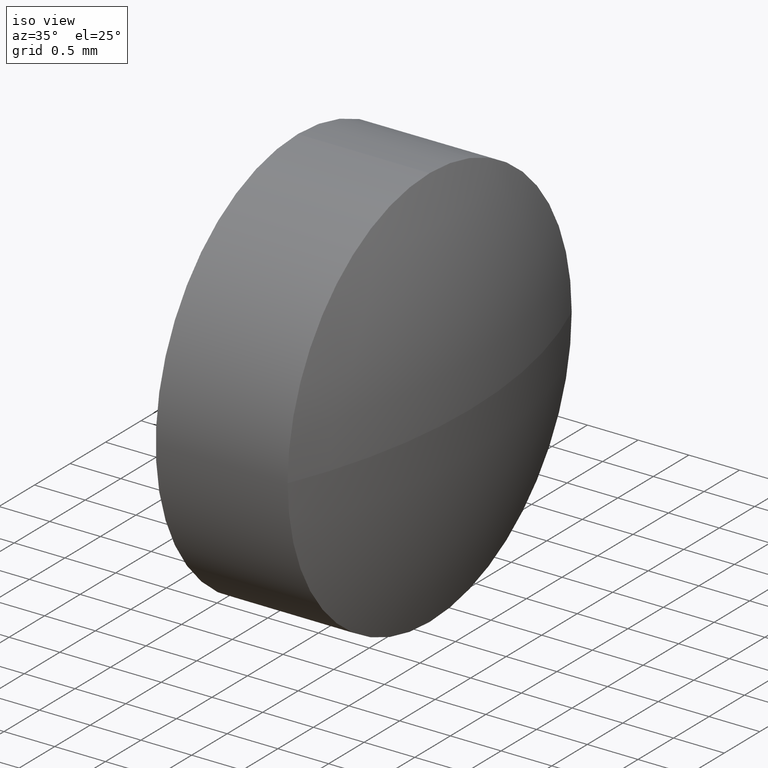
[diagram: clean part render]
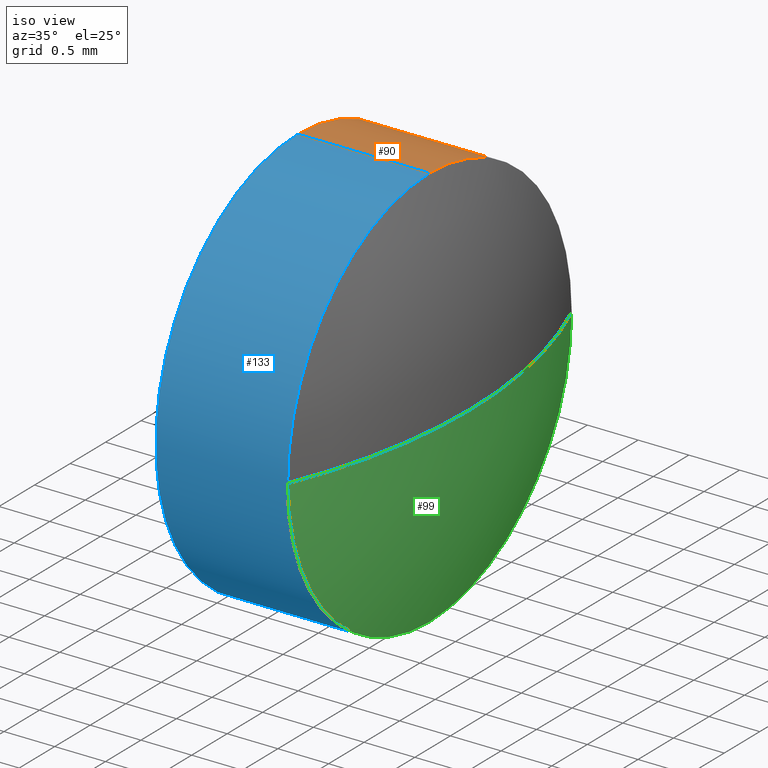
[diagram: same view with three faces highlighted in distinct colors, each labeled with its STEP entity id]
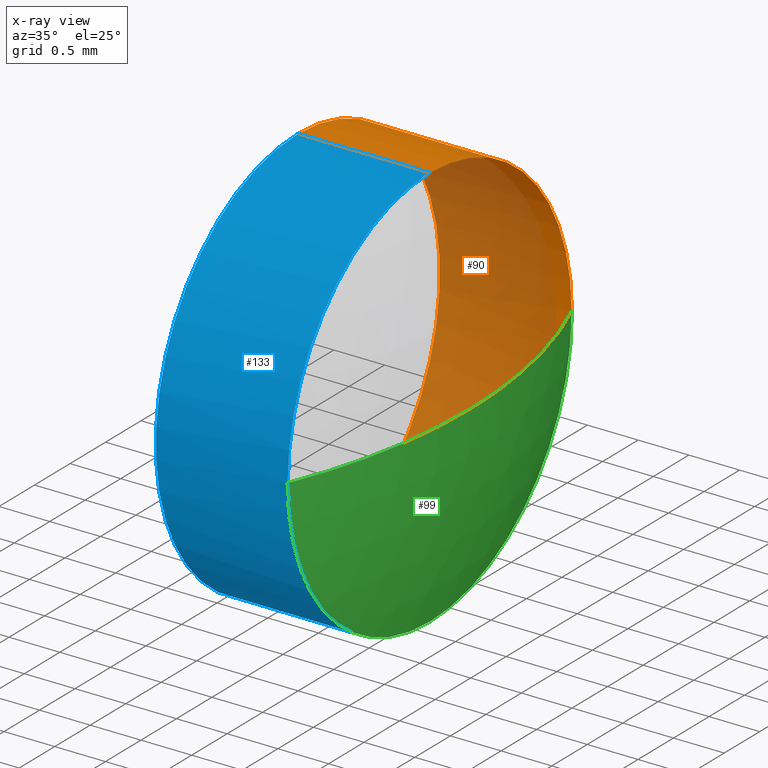
[diagram: x-ray of the same camera — body ghosted, the three highlighted faces saturated]
A machine part, iso view with three faces highlighted in distinct colors.
The next image is the same camera in x-ray (body ghosted, the three faces saturated) — at least one of them is partly hidden behind the body in this view.
Their STEP definitions:

[orange] entity #90 — the highlighted cylindrical surface (partial cylindrical patch) has radius 2 mm, axis along (-1, -0, -0).
#18 = DIRECTION ( 'NONE',  ( -1.000000000000000000, -0.0000000000000000000, -0.0000000000000000000 ) ) ;
#24 = DIRECTION ( 'NONE',  ( -1.000000000000000000, -0.0000000000000000000, -0.0000000000000000000 ) ) ;
#27 = AXIS2_PLACEMENT_3D ( 'NONE', #146, #33, #141 ) ;
#31 = CARTESIAN_POINT ( 'NONE',  ( 670.2757176332884200, 145.5310956935278200, -2.000000000000001800 ) ) ;
#32 = ORIENTED_EDGE ( 'NONE', *, *, #73, .T. ) ;
#33 = DIRECTION ( 'NONE',  ( -1.000000000000000000, -0.0000000000000000000, -0.0000000000000000000 ) ) ;
#35 = CARTESIAN_POINT ( 'NONE',  ( 671.7241212514443300, 145.5310956935278200, 2.000000000000001800 ) ) ;
#44 = AXIS2_PLACEMENT_3D ( 'NONE', #110, #24, #160 ) ;
#45 = CIRCLE ( 'NONE', #185, 2.000000000000001800 ) ;
#47 = CARTESIAN_POINT ( 'NONE',  ( 670.4241212514442600, 145.5310956935278200, -2.000000000000001800 ) ) ;
#55 = LINE ( 'NONE', #31, #56 ) ;
#56 = VECTOR ( 'NONE', #18, 1000.000000000000000 ) ;
#59 = VERTEX_POINT ( 'NONE', #179 ) ;
#61 = EDGE_CURVE ( 'NONE', #59, #76, #45, .T. ) ;
#71 = VERTEX_POINT ( 'NONE', #128 ) ;
#73 = EDGE_CURVE ( 'NONE', #108, #76, #55, .T. ) ;
#74 = CIRCLE ( 'NONE', #126, 2.000000000000001800 ) ;
#76 = VERTEX_POINT ( 'NONE', #47 ) ;
#77 = DIRECTION ( 'NONE',  ( -1.000000000000000000, -0.0000000000000000000, -0.0000000000000000000 ) ) ;
#85 = EDGE_CURVE ( 'NONE', #156, #59, #92, .T. ) ;
#89 = DIRECTION ( 'NONE',  ( -1.000000000000000000, -0.0000000000000000000, -0.0000000000000000000 ) ) ;
#90 = ADVANCED_FACE ( 'NONE', ( #124 ), #120, .T. ) ;
#91 = CARTESIAN_POINT ( 'NONE',  ( 670.2757176332884200, 145.5310956935278200, 2.000000000000001800 ) ) ;
#92 = LINE ( 'NONE', #91, #154 ) ;
#96 = CARTESIAN_POINT ( 'NONE',  ( 671.7241212514443300, 145.5310956935278200, 0.0000000000000000000 ) ) ;
#100 = ORIENTED_EDGE ( 'NONE', *, *, #61, .F. ) ;
#102 = ORIENTED_EDGE ( 'NONE', *, *, #85, .F. ) ;
#104 = EDGE_LOOP ( 'NONE', ( #138, #129, #32, #100, #102 ) ) ;
#108 = VERTEX_POINT ( 'NONE', #111 ) ;
#109 = EDGE_CURVE ( 'NONE', #156, #71, #186, .T. ) ;
#110 = CARTESIAN_POINT ( 'NONE',  ( 671.7241212514443300, 145.5310956935278200, 0.0000000000000000000 ) ) ;
#111 = CARTESIAN_POINT ( 'NONE',  ( 671.7241212514443300, 145.5310956935278200, -2.000000000000001800 ) ) ;
#120 = CYLINDRICAL_SURFACE ( 'NONE', #27, 2.000000000000001800 ) ;
#122 = DIRECTION ( 'NONE',  ( -1.000000000000000000, -0.0000000000000000000, -0.0000000000000000000 ) ) ;
#123 = DIRECTION ( 'NONE',  ( 0.0000000000000000000, 0.0000000000000000000, 1.000000000000000000 ) ) ;
#124 = FACE_OUTER_BOUND ( 'NONE', #104, .T. ) ;
#126 = AXIS2_PLACEMENT_3D ( 'NONE', #96, #122, #123 ) ;
#128 = CARTESIAN_POINT ( 'NONE',  ( 671.7241212514443300, 147.5310956935277900, 0.0000000000000000000 ) ) ;
#129 = ORIENTED_EDGE ( 'NONE', *, *, #168, .T. ) ;
#138 = ORIENTED_EDGE ( 'NONE', *, *, #109, .T. ) ;
#141 = DIRECTION ( 'NONE',  ( 0.0000000000000000000, 0.0000000000000000000, 1.000000000000000000 ) ) ;
#144 = DIRECTION ( 'NONE',  ( 0.0000000000000000000, 0.0000000000000000000, 1.000000000000000000 ) ) ;
#146 = CARTESIAN_POINT ( 'NONE',  ( 670.2757176332884200, 145.5310956935278200, 0.0000000000000000000 ) ) ;
#154 = VECTOR ( 'NONE', #77, 1000.000000000000000 ) ;
#156 = VERTEX_POINT ( 'NONE', #35 ) ;
#158 = CARTESIAN_POINT ( 'NONE',  ( 670.4241212514442600, 145.5310956935278200, 0.0000000000000000000 ) ) ;
#160 = DIRECTION ( 'NONE',  ( 0.0000000000000000000, 0.0000000000000000000, 1.000000000000000000 ) ) ;
#168 = EDGE_CURVE ( 'NONE', #71, #108, #74, .T. ) ;
#179 = CARTESIAN_POINT ( 'NONE',  ( 670.4241212514442600, 145.5310956935278200, 2.000000000000001800 ) ) ;
#185 = AXIS2_PLACEMENT_3D ( 'NONE', #158, #89, #144 ) ;
#186 = CIRCLE ( 'NONE', #44, 2.000000000000001800 ) ;

[blue] entity #133 — the highlighted cylindrical surface (partial cylindrical patch) has radius 2 mm, axis along (-1, -0, -0).
#1 = AXIS2_PLACEMENT_3D ( 'NONE', #6, #10, #181 ) ;
#6 = CARTESIAN_POINT ( 'NONE',  ( 671.7241212514443300, 145.5310956935278200, 0.0000000000000000000 ) ) ;
#10 = DIRECTION ( 'NONE',  ( -1.000000000000000000, -0.0000000000000000000, -0.0000000000000000000 ) ) ;
#11 = AXIS2_PLACEMENT_3D ( 'NONE', #130, #43, #118 ) ;
#12 = DIRECTION ( 'NONE',  ( -1.000000000000000000, -0.0000000000000000000, -0.0000000000000000000 ) ) ;
#18 = DIRECTION ( 'NONE',  ( -1.000000000000000000, -0.0000000000000000000, -0.0000000000000000000 ) ) ;
#21 = CARTESIAN_POINT ( 'NONE',  ( 671.7241212514443300, 143.5310956935279000, -2.449293598294682300E-016 ) ) ;
#22 = DIRECTION ( 'NONE',  ( -1.000000000000000000, -0.0000000000000000000, -0.0000000000000000000 ) ) ;
#28 = EDGE_LOOP ( 'NONE', ( #52, #170, #125, #172, #30 ) ) ;
#30 = ORIENTED_EDGE ( 'NONE', *, *, #57, .F. ) ;
#31 = CARTESIAN_POINT ( 'NONE',  ( 670.2757176332884200, 145.5310956935278200, -2.000000000000001800 ) ) ;
#35 = CARTESIAN_POINT ( 'NONE',  ( 671.7241212514443300, 145.5310956935278200, 2.000000000000001800 ) ) ;
#40 = CIRCLE ( 'NONE', #155, 2.000000000000001800 ) ;
#43 = DIRECTION ( 'NONE',  ( -1.000000000000000000, -0.0000000000000000000, -0.0000000000000000000 ) ) ;
#47 = CARTESIAN_POINT ( 'NONE',  ( 670.4241212514442600, 145.5310956935278200, -2.000000000000001800 ) ) ;
#52 = ORIENTED_EDGE ( 'NONE', *, *, #73, .F. ) ;
#55 = LINE ( 'NONE', #31, #56 ) ;
#56 = VECTOR ( 'NONE', #18, 1000.000000000000000 ) ;
#57 = EDGE_CURVE ( 'NONE', #76, #59, #97, .T. ) ;
#59 = VERTEX_POINT ( 'NONE', #179 ) ;
#64 = CIRCLE ( 'NONE', #1, 2.000000000000001800 ) ;
#73 = EDGE_CURVE ( 'NONE', #108, #76, #55, .T. ) ;
#76 = VERTEX_POINT ( 'NONE', #47 ) ;
#77 = DIRECTION ( 'NONE',  ( -1.000000000000000000, -0.0000000000000000000, -0.0000000000000000000 ) ) ;
#85 = EDGE_CURVE ( 'NONE', #156, #59, #92, .T. ) ;
#91 = CARTESIAN_POINT ( 'NONE',  ( 670.2757176332884200, 145.5310956935278200, 2.000000000000001800 ) ) ;
#92 = LINE ( 'NONE', #91, #154 ) ;
#93 = CARTESIAN_POINT ( 'NONE',  ( 671.7241212514443300, 145.5310956935278200, 0.0000000000000000000 ) ) ;
#95 = DIRECTION ( 'NONE',  ( 0.0000000000000000000, 0.0000000000000000000, 1.000000000000000000 ) ) ;
#97 = CIRCLE ( 'NONE', #11, 2.000000000000001800 ) ;
#108 = VERTEX_POINT ( 'NONE', #111 ) ;
#111 = CARTESIAN_POINT ( 'NONE',  ( 671.7241212514443300, 145.5310956935278200, -2.000000000000001800 ) ) ;
#118 = DIRECTION ( 'NONE',  ( 0.0000000000000000000, 0.0000000000000000000, 1.000000000000000000 ) ) ;
#125 = ORIENTED_EDGE ( 'NONE', *, *, #147, .T. ) ;
#130 = CARTESIAN_POINT ( 'NONE',  ( 670.4241212514442600, 145.5310956935278200, 0.0000000000000000000 ) ) ;
#133 = ADVANCED_FACE ( 'NONE', ( #148 ), #167, .T. ) ;
#145 = AXIS2_PLACEMENT_3D ( 'NONE', #152, #22, #182 ) ;
#147 = EDGE_CURVE ( 'NONE', #178, #156, #40, .T. ) ;
#148 = FACE_OUTER_BOUND ( 'NONE', #28, .T. ) ;
#152 = CARTESIAN_POINT ( 'NONE',  ( 670.2757176332884200, 145.5310956935278200, 0.0000000000000000000 ) ) ;
#154 = VECTOR ( 'NONE', #77, 1000.000000000000000 ) ;
#155 = AXIS2_PLACEMENT_3D ( 'NONE', #93, #12, #95 ) ;
#156 = VERTEX_POINT ( 'NONE', #35 ) ;
#167 = CYLINDRICAL_SURFACE ( 'NONE', #145, 2.000000000000001800 ) ;
#170 = ORIENTED_EDGE ( 'NONE', *, *, #180, .T. ) ;
#172 = ORIENTED_EDGE ( 'NONE', *, *, #85, .T. ) ;
#178 = VERTEX_POINT ( 'NONE', #21 ) ;
#179 = CARTESIAN_POINT ( 'NONE',  ( 670.4241212514442600, 145.5310956935278200, 2.000000000000001800 ) ) ;
#180 = EDGE_CURVE ( 'NONE', #108, #178, #64, .T. ) ;
#181 = DIRECTION ( 'NONE',  ( 0.0000000000000000000, 0.0000000000000000000, 1.000000000000000000 ) ) ;
#182 = DIRECTION ( 'NONE',  ( 0.0000000000000000000, 0.0000000000000000000, 1.000000000000000000 ) ) ;

[green] entity #99 — the highlighted spherical surface has radius 5.2 mm.
#1 = AXIS2_PLACEMENT_3D ( 'NONE', #6, #10, #181 ) ;
#4 = AXIS2_PLACEMENT_3D ( 'NONE', #65, #98, #161 ) ;
#6 = CARTESIAN_POINT ( 'NONE',  ( 671.7241212514443300, 145.5310956935278200, 0.0000000000000000000 ) ) ;
#7 = CIRCLE ( 'NONE', #4, 5.199999999999898900 ) ;
#8 = DIRECTION ( 'NONE',  ( 0.0000000000000000000, 1.000000000000000000, 0.0000000000000000000 ) ) ;
#10 = DIRECTION ( 'NONE',  ( -1.000000000000000000, -0.0000000000000000000, -0.0000000000000000000 ) ) ;
#15 = AXIS2_PLACEMENT_3D ( 'NONE', #165, #151, #8 ) ;
#21 = CARTESIAN_POINT ( 'NONE',  ( 671.7241212514443300, 143.5310956935279000, -2.449293598294682300E-016 ) ) ;
#26 = EDGE_CURVE ( 'NONE', #135, #71, #66, .T. ) ;
#39 = ORIENTED_EDGE ( 'NONE', *, *, #101, .T. ) ;
#41 = SPHERICAL_SURFACE ( 'NONE', #15, 5.199999999999887400 ) ;
#42 = DIRECTION ( 'NONE',  ( -0.0000000000000000000, 0.0000000000000000000, 1.000000000000000000 ) ) ;
#60 = DIRECTION ( 'NONE',  ( 1.000000000000000000, 0.0000000000000000000, 0.0000000000000000000 ) ) ;
#64 = CIRCLE ( 'NONE', #1, 2.000000000000001800 ) ;
#65 = CARTESIAN_POINT ( 'NONE',  ( 666.9241212514443800, 145.5310956935278700, 0.0000000000000000000 ) ) ;
#66 = CIRCLE ( 'NONE', #139, 5.199999999999871400 ) ;
#71 = VERTEX_POINT ( 'NONE', #128 ) ;
#72 = ORIENTED_EDGE ( 'NONE', *, *, #26, .F. ) ;
#74 = CIRCLE ( 'NONE', #126, 2.000000000000001800 ) ;
#84 = EDGE_LOOP ( 'NONE', ( #72, #39, #174, #113 ) ) ;
#96 = CARTESIAN_POINT ( 'NONE',  ( 671.7241212514443300, 145.5310956935278200, 0.0000000000000000000 ) ) ;
#98 = DIRECTION ( 'NONE',  ( 0.0000000000000000000, 1.224646799147353200E-016, -1.000000000000000000 ) ) ;
#99 = ADVANCED_FACE ( 'NONE', ( #157 ), #41, .T. ) ;
#101 = EDGE_CURVE ( 'NONE', #135, #178, #7, .T. ) ;
#108 = VERTEX_POINT ( 'NONE', #111 ) ;
#111 = CARTESIAN_POINT ( 'NONE',  ( 671.7241212514443300, 145.5310956935278200, -2.000000000000001800 ) ) ;
#113 = ORIENTED_EDGE ( 'NONE', *, *, #168, .F. ) ;
#121 = CARTESIAN_POINT ( 'NONE',  ( 672.1241212514443100, 145.5310956935278700, 0.0000000000000000000 ) ) ;
#122 = DIRECTION ( 'NONE',  ( -1.000000000000000000, -0.0000000000000000000, -0.0000000000000000000 ) ) ;
#123 = DIRECTION ( 'NONE',  ( 0.0000000000000000000, 0.0000000000000000000, 1.000000000000000000 ) ) ;
#126 = AXIS2_PLACEMENT_3D ( 'NONE', #96, #122, #123 ) ;
#128 = CARTESIAN_POINT ( 'NONE',  ( 671.7241212514443300, 147.5310956935277900, 0.0000000000000000000 ) ) ;
#131 = CARTESIAN_POINT ( 'NONE',  ( 666.9241212514443800, 145.5310956935278700, 0.0000000000000000000 ) ) ;
#135 = VERTEX_POINT ( 'NONE', #121 ) ;
#139 = AXIS2_PLACEMENT_3D ( 'NONE', #131, #42, #60 ) ;
#151 = DIRECTION ( 'NONE',  ( -0.0000000000000000000, 0.0000000000000000000, -1.000000000000000000 ) ) ;
#157 = FACE_OUTER_BOUND ( 'NONE', #84, .T. ) ;
#161 = DIRECTION ( 'NONE',  ( 0.0000000000000000000, 1.000000000000000000, 1.224646799147350500E-016 ) ) ;
#165 = CARTESIAN_POINT ( 'NONE',  ( 666.9241212514443800, 145.5310956935278700, 0.0000000000000000000 ) ) ;
#168 = EDGE_CURVE ( 'NONE', #71, #108, #74, .T. ) ;
#174 = ORIENTED_EDGE ( 'NONE', *, *, #180, .F. ) ;
#178 = VERTEX_POINT ( 'NONE', #21 ) ;
#180 = EDGE_CURVE ( 'NONE', #108, #178, #64, .T. ) ;
#181 = DIRECTION ( 'NONE',  ( 0.0000000000000000000, 0.0000000000000000000, 1.000000000000000000 ) ) ;